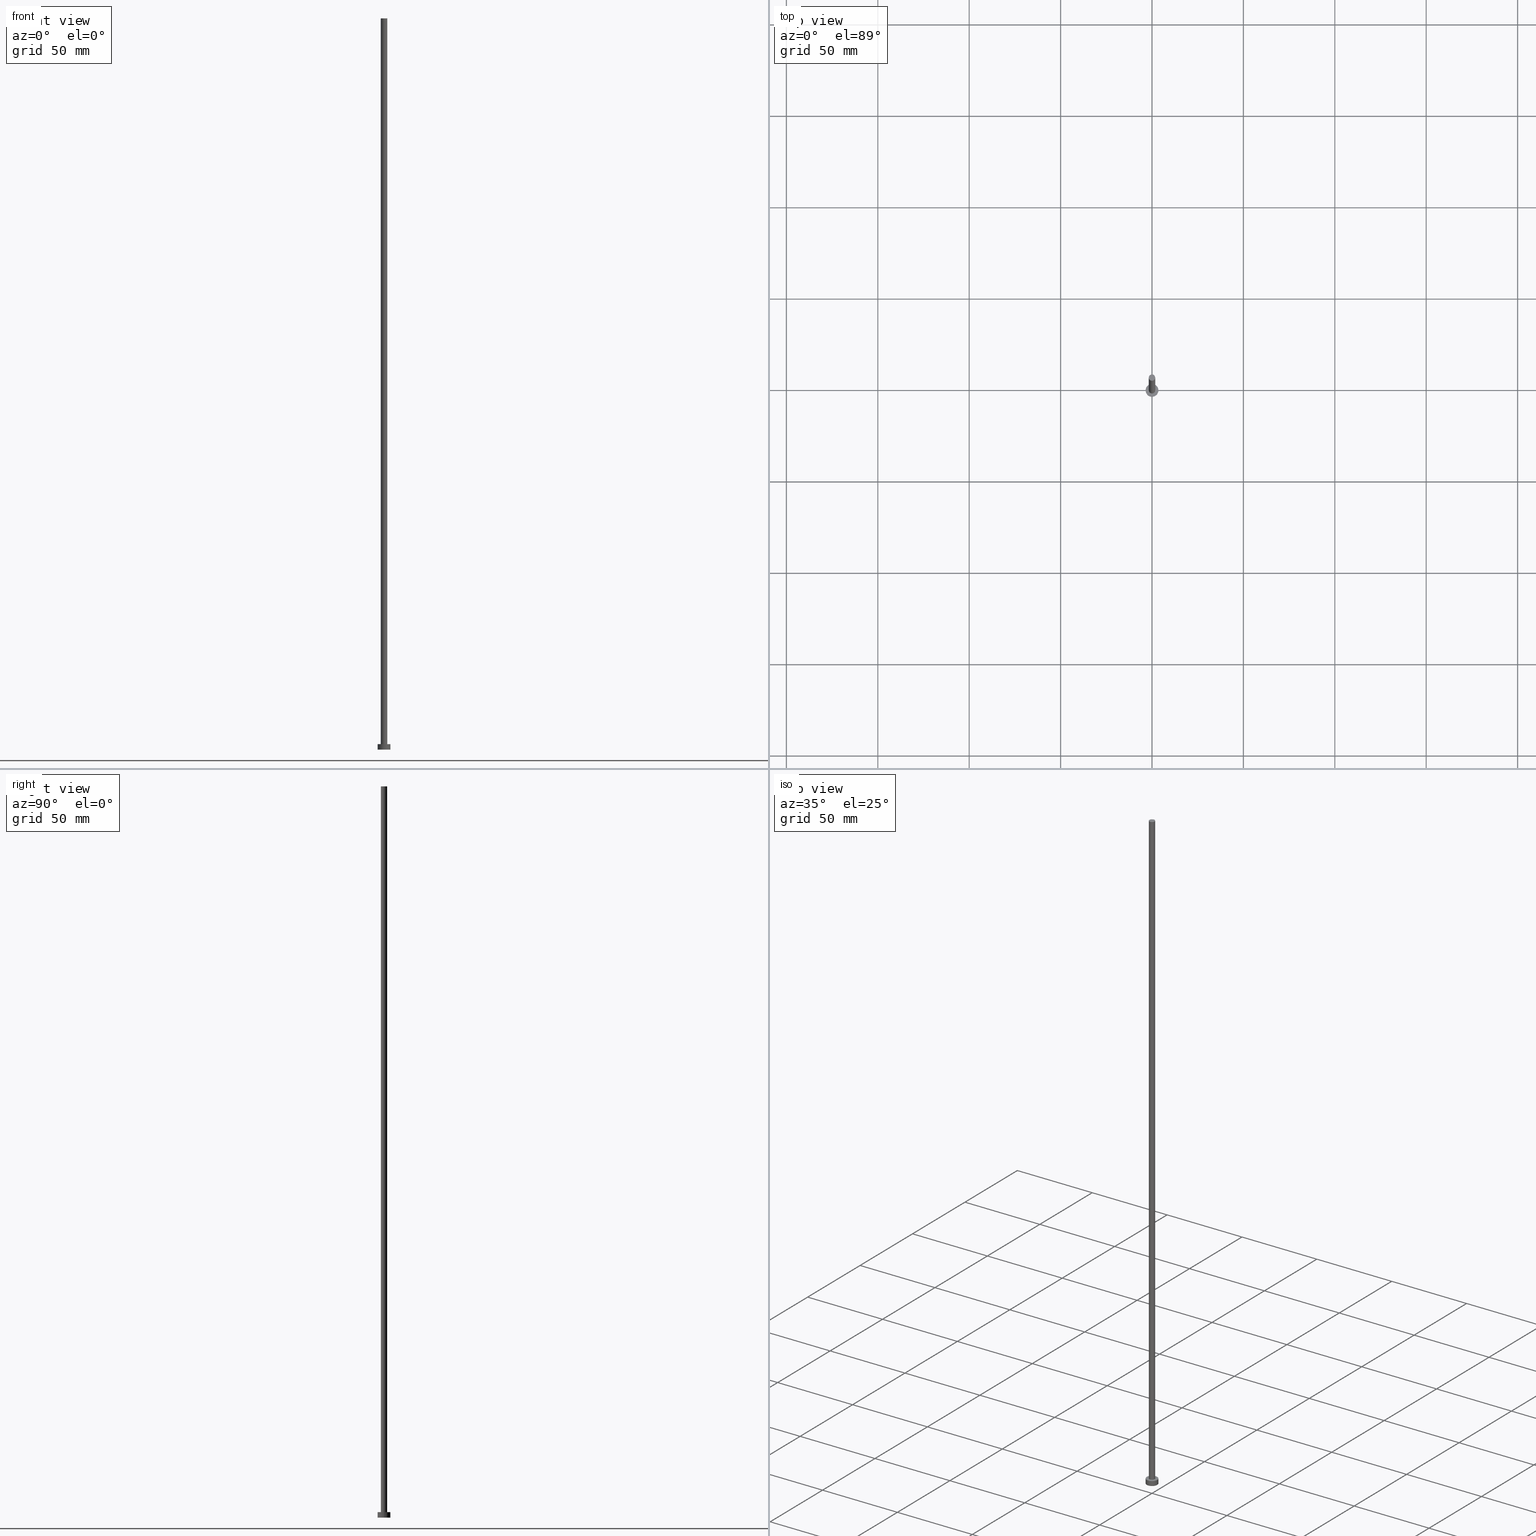
[diagram: canonical four-view strip — front | top / right | iso, engineering-drawing reading convention]
A machine part, canonical four-view strip (front | top / right | iso — engineering-drawing reading convention). The complete STEP part file that produces these views, byte-faithful:
ISO-10303-21;
HEADER;
FILE_DESCRIPTION (( 'STEP AP203' ),
    '1' );
FILE_NAME ('65bb.STEP',
    '2023-02-13T15:34:05',
    ( '' ),
    ( '' ),
    'SwSTEP 2.0',
    'SolidWorks 2019',
    '' );
FILE_SCHEMA (( 'CONFIG_CONTROL_DESIGN' ));
ENDSEC;

DATA;
#1 = DIRECTION ( 'NONE',  ( 1.000000000000000000, 0.000000000000000000, 0.000000000000000000 ) ) ;
#2 = AXIS2_PLACEMENT_3D ( 'NONE', #42, #190, #122 ) ;
#3 = EDGE_CURVE ( 'NONE', #203, #182, #137, .T. ) ;
#4 = DATE_AND_TIME ( #184, #225 ) ;
#5 = ORIENTED_EDGE ( 'NONE', *, *, #87, .T. ) ;
#6 = PERSON_AND_ORGANIZATION ( #28, #211 ) ;
#7 = DIRECTION ( 'NONE',  ( 1.000000000000000000, 0.000000000000000000, 0.000000000000000000 ) ) ;
#8 = VECTOR ( 'NONE', #111, 1000.000000000000000 ) ;
#9 = CC_DESIGN_APPROVAL ( #251, ( #218 ) ) ;
#10 = DIRECTION ( 'NONE',  ( 0.000000000000000000, 0.000000000000000000, 1.000000000000000000 ) ) ;
#11 = DIRECTION ( 'NONE',  ( -1.000000000000000000, 0.000000000000000000, 0.000000000000000000 ) ) ;
#12 = ADVANCED_FACE ( 'NONE', ( #164 ), #165, .T. ) ;
#13 = DIRECTION ( 'NONE',  ( -0.000000000000000000, -0.000000000000000000, -1.000000000000000000 ) ) ;
#14 = PLANE ( 'NONE',  #85 ) ;
#15 = CYLINDRICAL_SURFACE ( 'NONE', #159, 3.500000000000000444 ) ;
#16 = ORIENTED_EDGE ( 'NONE', *, *, #119, .F. ) ;
#17 = PERSON_AND_ORGANIZATION ( #28, #211 ) ;
#18 = APPROVAL_ROLE ( '' ) ;
#19 = VERTEX_POINT ( 'NONE', #84 ) ;
#20 = ADVANCED_FACE ( 'NONE', ( #221 ), #40, .F. ) ;
#21 = CARTESIAN_POINT ( 'NONE',  ( 0.000000000000000000, 0.000000000000000000, 0.000000000000000000 ) ) ;
#22 = COORDINATED_UNIVERSAL_TIME_OFFSET ( 1, 0, .AHEAD. ) ;
#23 = CARTESIAN_POINT ( 'NONE',  ( 3.500000000000000444, 4.286263797015737088E-16, 3.000000000000000000 ) ) ;
#24 = DATE_AND_TIME ( #129, #173 ) ;
#25 = ORIENTED_EDGE ( 'NONE', *, *, #73, .F. ) ;
#26 = CC_DESIGN_PERSON_AND_ORGANIZATION_ASSIGNMENT ( #6, #167, ( #218 ) ) ;
#27 = EDGE_LOOP ( 'NONE', ( #44, #37 ) ) ;
#28 = PERSON ( 'NEUR�EN�', 'NEUR�EN�', 'NEUR�EN�', ('NEUR�EN�'), ('NEUR�EN�'), ('NEUR�EN�') ) ;
#29 = CARTESIAN_POINT ( 'NONE',  ( 0.000000000000000000, 0.000000000000000000, 3.000000000000000000 ) ) ;
#30 = AXIS2_PLACEMENT_3D ( 'NONE', #202, #220, #38 ) ;
#31 = CARTESIAN_POINT ( 'NONE',  ( -3.500000000000000444, 0.000000000000000000, 0.000000000000000000 ) ) ;
#32 = DIRECTION ( 'NONE',  ( 0.000000000000000000, 0.000000000000000000, 1.000000000000000000 ) ) ;
#33 = EDGE_CURVE ( 'NONE', #59, #203, #100, .T. ) ;
#34 = CYLINDRICAL_SURFACE ( 'NONE', #103, 3.500000000000000444 ) ;
#35 = CYLINDRICAL_SURFACE ( 'NONE', #239, 1.750000000000000000 ) ;
#36 = ADVANCED_BREP_SHAPE_REPRESENTATION ( '65bb', ( #123, #30 ), #170 ) ;
#37 = ORIENTED_EDGE ( 'NONE', *, *, #73, .T. ) ;
#38 = DIRECTION ( 'NONE',  ( 1.000000000000000000, 0.000000000000000000, 0.000000000000000000 ) ) ;
#39 = ORIENTED_EDGE ( 'NONE', *, *, #119, .T. ) ;
#40 = PLANE ( 'NONE',  #2 ) ;
#41 = COORDINATED_UNIVERSAL_TIME_OFFSET ( 1, 0, .AHEAD. ) ;
#42 = CARTESIAN_POINT ( 'NONE',  ( 0.000000000000000000, 0.000000000000000000, 0.000000000000000000 ) ) ;
#43 = CIRCLE ( 'NONE', #149, 1.750000000000000000 ) ;
#44 = ORIENTED_EDGE ( 'NONE', *, *, #139, .T. ) ;
#45 = CC_DESIGN_PERSON_AND_ORGANIZATION_ASSIGNMENT ( #74, #78, ( #176 ) ) ;
#46 = ORIENTED_EDGE ( 'NONE', *, *, #92, .T. ) ;
#47 = DATE_AND_TIME ( #105, #132 ) ;
#48 = DIRECTION ( 'NONE',  ( -1.000000000000000000, 0.000000000000000000, 0.000000000000000000 ) ) ;
#49 = PERSON_AND_ORGANIZATION_ROLE ( 'creator' ) ;
#50 = EDGE_CURVE ( 'NONE', #182, #203, #75, .T. ) ;
#51 = CYLINDRICAL_SURFACE ( 'NONE', #76, 1.750000000000000000 ) ;
#52 =( LENGTH_UNIT ( ) NAMED_UNIT ( * ) SI_UNIT ( .MILLI., .METRE. ) );
#53 = APPROVAL ( #238, 'NEUR�EN�' ) ;
#54 = CC_DESIGN_APPROVAL ( #53, ( #180 ) ) ;
#55 = CARTESIAN_POINT ( 'NONE',  ( 0.000000000000000000, 0.000000000000000000, 3.000000000000000000 ) ) ;
#56 = ORIENTED_EDGE ( 'NONE', *, *, #58, .T. ) ;
#57 = CLOSED_SHELL ( 'NONE', ( #158, #194, #178, #242, #20, #216, #12 ) ) ;
#58 = EDGE_CURVE ( 'NONE', #234, #182, #106, .T. ) ;
#59 = VERTEX_POINT ( 'NONE', #23 ) ;
#60 = ORIENTED_EDGE ( 'NONE', *, *, #58, .F. ) ;
#61 = ORIENTED_EDGE ( 'NONE', *, *, #68, .T. ) ;
#62 = EDGE_LOOP ( 'NONE', ( #200, #118, #56, #254 ) ) ;
#63 = SECURITY_CLASSIFICATION_LEVEL ( 'unclassified' ) ;
#64 = VECTOR ( 'NONE', #207, 1000.000000000000000 ) ;
#65 = ORIENTED_EDGE ( 'NONE', *, *, #127, .T. ) ;
#66 = ORIENTED_EDGE ( 'NONE', *, *, #33, .T. ) ;
#67 = DATE_TIME_ROLE ( 'classification_date' ) ;
#68 = EDGE_CURVE ( 'NONE', #136, #177, #205, .T. ) ;
#69 = LINE ( 'NONE', #212, #8 ) ;
#70 = DIRECTION ( 'NONE',  ( 1.000000000000000000, 0.000000000000000000, 0.000000000000000000 ) ) ;
#71 = EDGE_LOOP ( 'NONE', ( #77, #99 ) ) ;
#72 = FACE_OUTER_BOUND ( 'NONE', #223, .T. ) ;
#73 = EDGE_CURVE ( 'NONE', #59, #234, #153, .T. ) ;
#74 = PERSON_AND_ORGANIZATION ( #28, #211 ) ;
#75 = CIRCLE ( 'NONE', #217, 3.500000000000000444 ) ;
#76 = AXIS2_PLACEMENT_3D ( 'NONE', #247, #195, #156 ) ;
#77 = ORIENTED_EDGE ( 'NONE', *, *, #50, .F. ) ;
#78 = PERSON_AND_ORGANIZATION_ROLE ( 'design_owner' ) ;
#79 = CARTESIAN_POINT ( 'NONE',  ( 0.000000000000000000, 0.000000000000000000, 400.0000000000000000 ) ) ;
#80 = DATE_TIME_ROLE ( 'creation_date' ) ;
#81 = ORIENTED_EDGE ( 'NONE', *, *, #3, .T. ) ;
#82 = DIRECTION ( 'NONE',  ( 1.000000000000000000, 0.000000000000000000, 0.000000000000000000 ) ) ;
#83 = CALENDAR_DATE ( 2023, 13, 2 ) ;
#84 = CARTESIAN_POINT ( 'NONE',  ( 1.750000000000000000, 2.143131898507868297E-16, 400.0000000000000000 ) ) ;
#85 = AXIS2_PLACEMENT_3D ( 'NONE', #93, #174, #252 ) ;
#86 = DIRECTION ( 'NONE',  ( 1.000000000000000000, 0.000000000000000000, 0.000000000000000000 ) ) ;
#87 = EDGE_CURVE ( 'NONE', #177, #141, #168, .T. ) ;
#88 = DIRECTION ( 'NONE',  ( 1.000000000000000000, 0.000000000000000000, 0.000000000000000000 ) ) ;
#89 = FACE_OUTER_BOUND ( 'NONE', #27, .T. ) ;
#90 = CC_DESIGN_APPROVAL ( #98, ( #138 ) ) ;
#91 = CARTESIAN_POINT ( 'NONE',  ( 0.000000000000000000, 0.000000000000000000, 400.0000000000000000 ) ) ;
#92 = EDGE_CURVE ( 'NONE', #136, #19, #116, .T. ) ;
#93 = CARTESIAN_POINT ( 'NONE',  ( 0.000000000000000000, 0.000000000000000000, 3.000000000000000000 ) ) ;
#94 = LOCAL_TIME ( 16, 34, 5.000000000000000000, #222 ) ;
#95 = ORIENTED_EDGE ( 'NONE', *, *, #92, .F. ) ;
#96 = ORIENTED_EDGE ( 'NONE', *, *, #87, .F. ) ;
#97 = CIRCLE ( 'NONE', #131, 1.750000000000000000 ) ;
#98 = APPROVAL ( #110, 'NEUR�EN�' ) ;
#99 = ORIENTED_EDGE ( 'NONE', *, *, #3, .F. ) ;
#100 = LINE ( 'NONE', #206, #121 ) ;
#101 = AXIS2_PLACEMENT_3D ( 'NONE', #183, #169, #1 ) ;
#102 = ORIENTED_EDGE ( 'NONE', *, *, #127, .F. ) ;
#103 = AXIS2_PLACEMENT_3D ( 'NONE', #196, #13, #48 ) ;
#104 = DIRECTION ( 'NONE',  ( -0.000000000000000000, -0.000000000000000000, -1.000000000000000000 ) ) ;
#105 = CALENDAR_DATE ( 2023, 13, 2 ) ;
#106 = LINE ( 'NONE', #188, #250 ) ;
#107 = SHAPE_DEFINITION_REPRESENTATION ( #160, #36 ) ;
#108 = DIRECTION ( 'NONE',  ( 0.000000000000000000, 0.000000000000000000, 1.000000000000000000 ) ) ;
#109 = APPROVAL_DATE_TIME ( #24, #98 ) ;
#110 = APPROVAL_STATUS ( 'not_yet_approved' ) ;
#111 = DIRECTION ( 'NONE',  ( -0.000000000000000000, -0.000000000000000000, -1.000000000000000000 ) ) ;
#112 = FACE_BOUND ( 'NONE', #244, .T. ) ;
#113 = AXIS2_PLACEMENT_3D ( 'NONE', #21, #108, #240 ) ;
#114 = APPROVAL_PERSON_ORGANIZATION ( #241, #251, #126 ) ;
#115 = ORIENTED_EDGE ( 'NONE', *, *, #68, .F. ) ;
#116 = CIRCLE ( 'NONE', #213, 1.750000000000000000 ) ;
#117 = LOCAL_TIME ( 16, 34, 5.000000000000000000, #235 ) ;
#118 = ORIENTED_EDGE ( 'NONE', *, *, #139, .F. ) ;
#119 = EDGE_CURVE ( 'NONE', #141, #177, #97, .T. ) ;
#120 = DIRECTION ( 'NONE',  ( 0.000000000000000000, 0.000000000000000000, 1.000000000000000000 ) ) ;
#121 = VECTOR ( 'NONE', #104, 1000.000000000000000 ) ;
#122 = DIRECTION ( 'NONE',  ( 1.000000000000000000, 0.000000000000000000, -0.000000000000000000 ) ) ;
#123 = MANIFOLD_SOLID_BREP ( 'P�idat vysunut�m3', #57 ) ;
#124 = AXIS2_PLACEMENT_3D ( 'NONE', #55, #32, #88 ) ;
#125 = CARTESIAN_POINT ( 'NONE',  ( -1.750000000000000000, 0.000000000000000000, 400.0000000000000000 ) ) ;
#126 = APPROVAL_ROLE ( '' ) ;
#127 = EDGE_CURVE ( 'NONE', #19, #141, #69, .T. ) ;
#128 = CARTESIAN_POINT ( 'NONE',  ( 0.000000000000000000, 0.000000000000000000, 400.0000000000000000 ) ) ;
#129 = CALENDAR_DATE ( 2023, 13, 2 ) ;
#130 = UNCERTAINTY_MEASURE_WITH_UNIT (LENGTH_MEASURE( 1.000000000000000082E-05 ), #52, 'distance_accuracy_value', 'NONE');
#131 = AXIS2_PLACEMENT_3D ( 'NONE', #29, #10, #86 ) ;
#132 = LOCAL_TIME ( 16, 34, 5.000000000000000000, #41 ) ;
#133 = CARTESIAN_POINT ( 'NONE',  ( -1.750000000000000000, 0.000000000000000000, 3.000000000000000000 ) ) ;
#134 = CARTESIAN_POINT ( 'NONE',  ( 3.500000000000000444, 4.286263797015737088E-16, 0.000000000000000000 ) ) ;
#135 = CC_DESIGN_PERSON_AND_ORGANIZATION_ASSIGNMENT ( #17, #140, ( #180 ) ) ;
#136 = VERTEX_POINT ( 'NONE', #175 ) ;
#137 = CIRCLE ( 'NONE', #113, 3.500000000000000444 ) ;
#138 = SECURITY_CLASSIFICATION ( '', '', #63 ) ;
#139 = EDGE_CURVE ( 'NONE', #234, #59, #157, .T. ) ;
#140 = PERSON_AND_ORGANIZATION_ROLE ( 'creator' ) ;
#141 = VERTEX_POINT ( 'NONE', #192 ) ;
#142 = AXIS2_PLACEMENT_3D ( 'NONE', #243, #189, #7 ) ;
#143 = DATE_AND_TIME ( #179, #117 ) ;
#144 = EDGE_CURVE ( 'NONE', #19, #136, #43, .T. ) ;
#145 = DIRECTION ( 'NONE',  ( 0.000000000000000000, 0.000000000000000000, 1.000000000000000000 ) ) ;
#146 = DIRECTION ( 'NONE',  ( 1.000000000000000000, 0.000000000000000000, -0.000000000000000000 ) ) ;
#147 = ORIENTED_EDGE ( 'NONE', *, *, #144, .T. ) ;
#148 = CC_DESIGN_PERSON_AND_ORGANIZATION_ASSIGNMENT ( #172, #209, ( #138 ) ) ;
#149 = AXIS2_PLACEMENT_3D ( 'NONE', #249, #155, #70 ) ;
#150 = PERSON_AND_ORGANIZATION ( #28, #211 ) ;
#151 = CARTESIAN_POINT ( 'NONE',  ( 0.000000000000000000, 0.000000000000000000, 0.000000000000000000 ) ) ;
#152 = APPROVAL_STATUS ( 'not_yet_approved' ) ;
#153 = CIRCLE ( 'NONE', #142, 3.500000000000000444 ) ;
#154 = CC_DESIGN_DATE_AND_TIME_ASSIGNMENT ( #4, #80, ( #180 ) ) ;
#155 = DIRECTION ( 'NONE',  ( 0.000000000000000000, 0.000000000000000000, 1.000000000000000000 ) ) ;
#156 = DIRECTION ( 'NONE',  ( -1.000000000000000000, 0.000000000000000000, 0.000000000000000000 ) ) ;
#157 = CIRCLE ( 'NONE', #124, 3.500000000000000444 ) ;
#158 = ADVANCED_FACE ( 'NONE', ( #210 ), #51, .T. ) ;
#159 = AXIS2_PLACEMENT_3D ( 'NONE', #232, #248, #193 ) ;
#160 = PRODUCT_DEFINITION_SHAPE ( 'NONE', 'NONE',  #180 ) ;
#161 = APPROVAL_DATE_TIME ( #143, #53 ) ;
#162 = PRODUCT_RELATED_PRODUCT_CATEGORY ( 'detail', '', ( #176 ) ) ;
#163 = PERSON_AND_ORGANIZATION ( #28, #211 ) ;
#164 = FACE_OUTER_BOUND ( 'NONE', #226, .T. ) ;
#165 = PLANE ( 'NONE',  #233 ) ;
#166 = DIRECTION ( 'NONE',  ( -0.000000000000000000, -0.000000000000000000, -1.000000000000000000 ) ) ;
#167 = PERSON_AND_ORGANIZATION_ROLE ( 'design_supplier' ) ;
#168 = CIRCLE ( 'NONE', #101, 1.750000000000000000 ) ;
#169 = DIRECTION ( 'NONE',  ( 0.000000000000000000, 0.000000000000000000, 1.000000000000000000 ) ) ;
#170 =( GEOMETRIC_REPRESENTATION_CONTEXT ( 3 ) GLOBAL_UNCERTAINTY_ASSIGNED_CONTEXT ( ( #130 ) ) GLOBAL_UNIT_ASSIGNED_CONTEXT ( ( #52, #246, #255 ) ) REPRESENTATION_CONTEXT ( 'NONE', 'WORKASPACE' ) );
#171 = EDGE_LOOP ( 'NONE', ( #25, #66, #81, #60 ) ) ;
#172 = PERSON_AND_ORGANIZATION ( #28, #211 ) ;
#173 = LOCAL_TIME ( 16, 34, 5.000000000000000000, #208 ) ;
#174 = DIRECTION ( 'NONE',  ( 0.000000000000000000, 0.000000000000000000, 1.000000000000000000 ) ) ;
#175 = CARTESIAN_POINT ( 'NONE',  ( -1.750000000000000000, 0.000000000000000000, 400.0000000000000000 ) ) ;
#176 = PRODUCT ( '65bb', '65bb', '', ( #201 ) ) ;
#177 = VERTEX_POINT ( 'NONE', #133 ) ;
#178 = ADVANCED_FACE ( 'NONE', ( #214 ), #34, .T. ) ;
#179 = CALENDAR_DATE ( 2023, 13, 2 ) ;
#180 = PRODUCT_DEFINITION ( 'NEZN�M�', '', #218, #187 ) ;
#181 = APPLICATION_CONTEXT ( 'configuration controlled 3d designs of mechanical parts and assemblies' ) ;
#182 = VERTEX_POINT ( 'NONE', #31 ) ;
#183 = CARTESIAN_POINT ( 'NONE',  ( 0.000000000000000000, 0.000000000000000000, 3.000000000000000000 ) ) ;
#184 = CALENDAR_DATE ( 2023, 13, 2 ) ;
#185 = APPROVAL_PERSON_ORGANIZATION ( #163, #53, #18 ) ;
#186 = DIRECTION ( 'NONE',  ( 1.000000000000000000, 0.000000000000000000, 0.000000000000000000 ) ) ;
#187 = DESIGN_CONTEXT ( 'detailed design', #197, 'design' ) ;
#188 = CARTESIAN_POINT ( 'NONE',  ( -3.500000000000000444, 0.000000000000000000, 3.000000000000000000 ) ) ;
#189 = DIRECTION ( 'NONE',  ( 0.000000000000000000, 0.000000000000000000, 1.000000000000000000 ) ) ;
#190 = DIRECTION ( 'NONE',  ( 0.000000000000000000, 0.000000000000000000, 1.000000000000000000 ) ) ;
#191 = CC_DESIGN_SECURITY_CLASSIFICATION ( #138, ( #218 ) ) ;
#192 = CARTESIAN_POINT ( 'NONE',  ( 1.750000000000000000, 2.143131898507868297E-16, 3.000000000000000000 ) ) ;
#193 = DIRECTION ( 'NONE',  ( -1.000000000000000000, 0.000000000000000000, 0.000000000000000000 ) ) ;
#194 = ADVANCED_FACE ( 'NONE', ( #199 ), #15, .T. ) ;
#195 = DIRECTION ( 'NONE',  ( -0.000000000000000000, -0.000000000000000000, -1.000000000000000000 ) ) ;
#196 = CARTESIAN_POINT ( 'NONE',  ( 0.000000000000000000, 0.000000000000000000, 3.000000000000000000 ) ) ;
#197 = APPLICATION_CONTEXT ( 'configuration controlled 3d designs of mechanical parts and assemblies' ) ;
#198 = CARTESIAN_POINT ( 'NONE',  ( -3.500000000000000444, 0.000000000000000000, 3.000000000000000000 ) ) ;
#199 = FACE_OUTER_BOUND ( 'NONE', #171, .T. ) ;
#200 = ORIENTED_EDGE ( 'NONE', *, *, #33, .F. ) ;
#201 = MECHANICAL_CONTEXT ( 'NONE', #181, 'mechanical' ) ;
#202 = CARTESIAN_POINT ( 'NONE',  ( 0.000000000000000000, 0.000000000000000000, 0.000000000000000000 ) ) ;
#203 = VERTEX_POINT ( 'NONE', #134 ) ;
#204 = APPLICATION_PROTOCOL_DEFINITION ( 'international standard', 'config_control_design', 1994, #197 ) ;
#205 = LINE ( 'NONE', #125, #64 ) ;
#206 = CARTESIAN_POINT ( 'NONE',  ( 3.500000000000000444, 4.286263797015737088E-16, 3.000000000000000000 ) ) ;
#207 = DIRECTION ( 'NONE',  ( -0.000000000000000000, -0.000000000000000000, -1.000000000000000000 ) ) ;
#208 = COORDINATED_UNIVERSAL_TIME_OFFSET ( 1, 0, .AHEAD. ) ;
#209 = PERSON_AND_ORGANIZATION_ROLE ( 'classification_officer' ) ;
#210 = FACE_OUTER_BOUND ( 'NONE', #237, .T. ) ;
#211 = ORGANIZATION ( 'NEUR�EN�', 'NEUR�EN�', '' ) ;
#212 = CARTESIAN_POINT ( 'NONE',  ( 1.750000000000000000, 2.143131898507868297E-16, 400.0000000000000000 ) ) ;
#213 = AXIS2_PLACEMENT_3D ( 'NONE', #79, #227, #186 ) ;
#214 = FACE_OUTER_BOUND ( 'NONE', #62, .T. ) ;
#215 = DIRECTION ( 'NONE',  ( -0.000000000000000000, -0.000000000000000000, -1.000000000000000000 ) ) ;
#216 = ADVANCED_FACE ( 'NONE', ( #72 ), #35, .T. ) ;
#217 = AXIS2_PLACEMENT_3D ( 'NONE', #151, #120, #82 ) ;
#218 = PRODUCT_DEFINITION_FORMATION_WITH_SPECIFIED_SOURCE ( 'LIBOVOLN�', '', #176, .NOT_KNOWN. ) ;
#219 = CC_DESIGN_PERSON_AND_ORGANIZATION_ASSIGNMENT ( #245, #49, ( #218 ) ) ;
#220 = DIRECTION ( 'NONE',  ( 0.000000000000000000, 0.000000000000000000, 1.000000000000000000 ) ) ;
#221 = FACE_OUTER_BOUND ( 'NONE', #71, .T. ) ;
#222 = COORDINATED_UNIVERSAL_TIME_OFFSET ( 1, 0, .AHEAD. ) ;
#223 = EDGE_LOOP ( 'NONE', ( #102, #95, #61, #5 ) ) ;
#224 = APPROVAL_DATE_TIME ( #229, #251 ) ;
#225 = LOCAL_TIME ( 16, 34, 5.000000000000000000, #22 ) ;
#226 = EDGE_LOOP ( 'NONE', ( #46, #147 ) ) ;
#227 = DIRECTION ( 'NONE',  ( 0.000000000000000000, 0.000000000000000000, 1.000000000000000000 ) ) ;
#228 = APPROVAL_ROLE ( '' ) ;
#229 = DATE_AND_TIME ( #83, #94 ) ;
#230 = APPROVAL_PERSON_ORGANIZATION ( #150, #98, #228 ) ;
#231 = ORIENTED_EDGE ( 'NONE', *, *, #144, .F. ) ;
#232 = CARTESIAN_POINT ( 'NONE',  ( 0.000000000000000000, 0.000000000000000000, 3.000000000000000000 ) ) ;
#233 = AXIS2_PLACEMENT_3D ( 'NONE', #128, #145, #146 ) ;
#234 = VERTEX_POINT ( 'NONE', #198 ) ;
#235 = COORDINATED_UNIVERSAL_TIME_OFFSET ( 1, 0, .AHEAD. ) ;
#236 = CC_DESIGN_DATE_AND_TIME_ASSIGNMENT ( #47, #67, ( #138 ) ) ;
#237 = EDGE_LOOP ( 'NONE', ( #231, #65, #39, #115 ) ) ;
#238 = APPROVAL_STATUS ( 'not_yet_approved' ) ;
#239 = AXIS2_PLACEMENT_3D ( 'NONE', #91, #215, #11 ) ;
#240 = DIRECTION ( 'NONE',  ( 1.000000000000000000, 0.000000000000000000, 0.000000000000000000 ) ) ;
#241 = PERSON_AND_ORGANIZATION ( #28, #211 ) ;
#242 = ADVANCED_FACE ( 'NONE', ( #112, #89 ), #14, .T. ) ;
#243 = CARTESIAN_POINT ( 'NONE',  ( 0.000000000000000000, 0.000000000000000000, 3.000000000000000000 ) ) ;
#244 = EDGE_LOOP ( 'NONE', ( #96, #16 ) ) ;
#245 = PERSON_AND_ORGANIZATION ( #28, #211 ) ;
#246 =( NAMED_UNIT ( * ) PLANE_ANGLE_UNIT ( ) SI_UNIT ( $, .RADIAN. ) );
#247 = CARTESIAN_POINT ( 'NONE',  ( 0.000000000000000000, 0.000000000000000000, 400.0000000000000000 ) ) ;
#248 = DIRECTION ( 'NONE',  ( -0.000000000000000000, -0.000000000000000000, -1.000000000000000000 ) ) ;
#249 = CARTESIAN_POINT ( 'NONE',  ( 0.000000000000000000, 0.000000000000000000, 400.0000000000000000 ) ) ;
#250 = VECTOR ( 'NONE', #166, 1000.000000000000000 ) ;
#251 = APPROVAL ( #152, 'NEUR�EN�' ) ;
#252 = DIRECTION ( 'NONE',  ( 1.000000000000000000, 0.000000000000000000, -0.000000000000000000 ) ) ;
#253 = APPLICATION_PROTOCOL_DEFINITION ( 'international standard', 'config_control_design', 1994, #181 ) ;
#254 = ORIENTED_EDGE ( 'NONE', *, *, #50, .T. ) ;
#255 =( NAMED_UNIT ( * ) SI_UNIT ( $, .STERADIAN. ) SOLID_ANGLE_UNIT ( ) );
ENDSEC;
END-ISO-10303-21;
